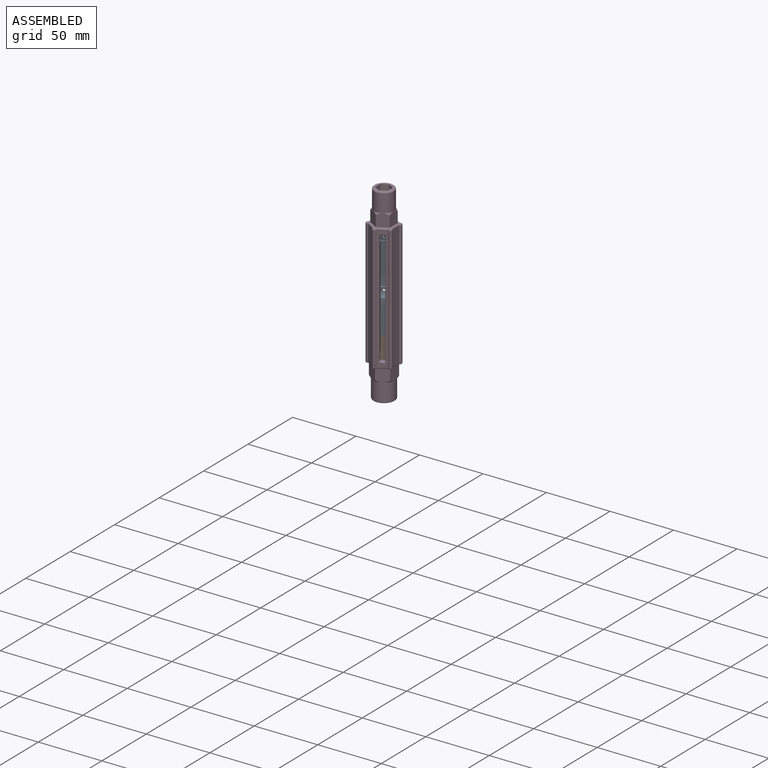
[diagram: assembled view]
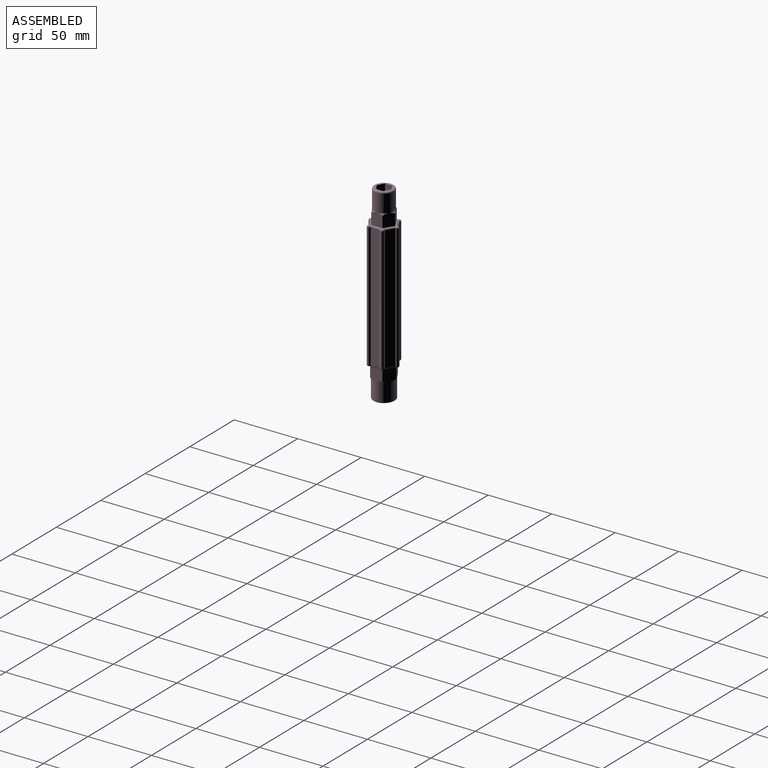
[diagram: assembled view, second angle]
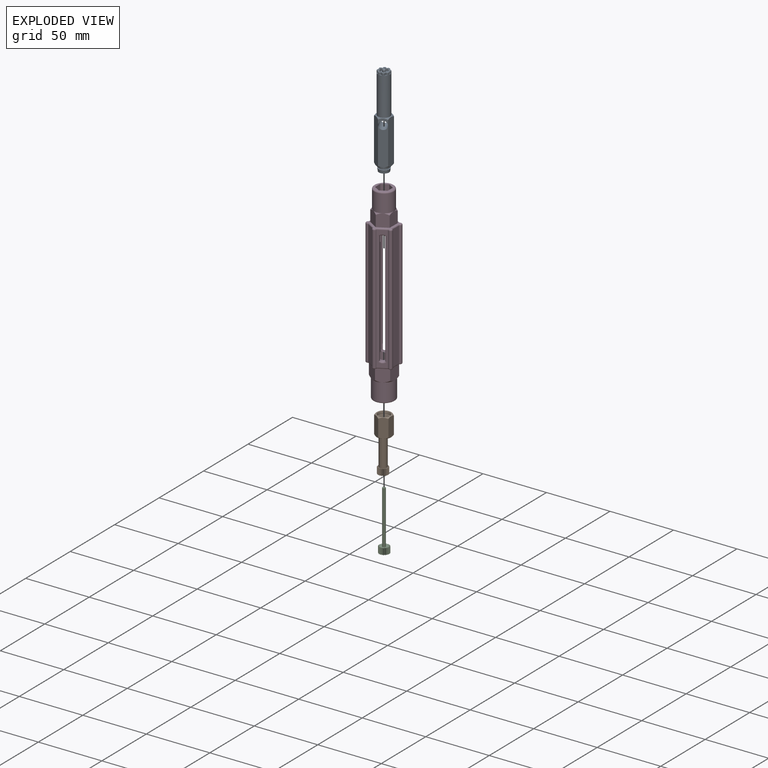
[diagram: exploded view]
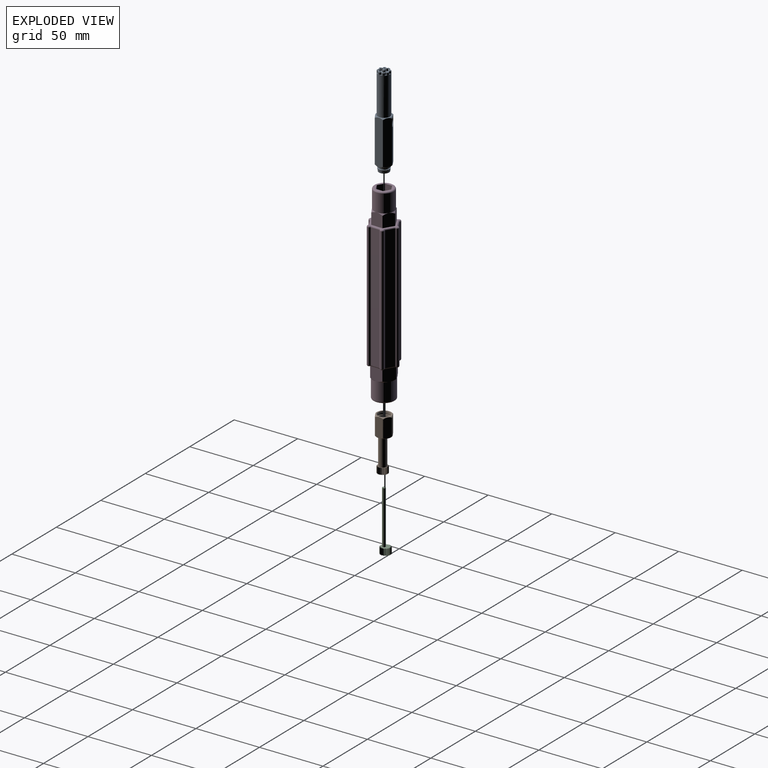
[diagram: exploded view, second angle]
ASSEMBLY  parts=4 mates=3
PART A: 108 faces, bbox 13x13x73 mm
  f0: plane 11.3x11.3mm, normal (0,0,1), area 29.4mm2, adj f9,f80,f81,f82,f83,f84,f85
  f1: plane 3.36x1.39mm, normal (0,0,1), area 1.3mm2, adj f9,f10,f24,f41
  f2: plane 3.36x1.39mm, normal (0,0,1), area 1.3mm2, adj f9,f10,f11,f12
  f3: plane 3.36x1.39mm, normal (0,0,1), area 1.3mm2, adj f9,f12,f13,f14
  f4: plane 3.36x1.39mm, normal (0,0,1), area 1.3mm2, adj f9,f14,f15,f16
  f5: plane 3.36x1.39mm, normal (0,0,1), area 1.3mm2, adj f9,f16,f17,f18
  f6: plane 3.36x1.39mm, normal (0,0,1), area 1.3mm2, adj f9,f18,f19,f20
  f7: plane 3.36x1.39mm, normal (0,0,1), area 1.3mm2, adj f9,f20,f21,f22
  f8: plane 3.36x1.39mm, normal (0,0,1), area 1.3mm2, adj f9,f22,f23,f24
  f9: cylinder r=4.75mm len=30mm, axis (0,0,-1), area 895.4mm2, adj f0,f1,f2,f3,f4,f5,f6,f7
  f10: cylinder r=1.25mm len=2.48mm, axis (0,0,-1), area 5.5mm2, adj f1,f2,f11,f41,f56
  f11: cylinder r=0.29mm len=1.53mm, axis (0,0,-1), area 0.9mm2, adj f2,f10,f12,f54
  f12: cylinder r=1.25mm len=2.01mm, axis (0,0,-1), area 5.5mm2, adj f2,f3,f11,f13,f52
  f13: cylinder r=0.29mm len=1.53mm, axis (0,0,-1), area 0.9mm2, adj f3,f12,f14,f50
  f14: cylinder r=1.25mm len=2.48mm, axis (0,0,-1), area 5.5mm2, adj f3,f4,f13,f15,f48
  f15: cylinder r=0.29mm len=1.53mm, axis (0,0,-1), area 0.9mm2, adj f4,f14,f16,f46
  f16: cylinder r=1.25mm len=2.01mm, axis (0,0,-1), area 5.5mm2, adj f4,f5,f15,f17,f44
  f17: cylinder r=0.29mm len=1.53mm, axis (0,0,-1), area 0.9mm2, adj f5,f16,f18,f45
  f18: cylinder r=1.25mm len=2.48mm, axis (0,0,-1), area 5.5mm2, adj f5,f6,f17,f19,f47
  f19: cylinder r=0.29mm len=1.53mm, axis (0,0,-1), area 0.9mm2, adj f6,f18,f20,f49
  f20: cylinder r=1.25mm len=2.01mm, axis (0,0,-1), area 5.5mm2, adj f6,f7,f19,f21,f51
  f21: cylinder r=0.29mm len=1.53mm, axis (0,0,-1), area 0.9mm2, adj f7,f20,f22,f53
  f22: cylinder r=1.25mm len=2.48mm, axis (0,0,-1), area 5.5mm2, adj f7,f8,f21,f23,f55
  f23: cylinder r=0.29mm len=1.53mm, axis (0,0,-1), area 0.9mm2, adj f8,f22,f24,f57
  f24: cylinder r=1.25mm len=2.01mm, axis (0,0,-1), area 5.5mm2, adj f1,f8,f23,f41,f59
  f25: cylinder r=1.25mm len=2mm, axis (0,0,-1), area 4mm2, adj f26,f40,f43,f73
  f26: cylinder r=0.29mm len=1.53mm, axis (0,0,-1), area 1.3mm2, adj f25,f27,f43,f71
  f27: cylinder r=1.25mm len=2mm, axis (0,0,-1), area 4mm2, adj f26,f28,f43,f69
  f28: cylinder r=0.29mm len=1.53mm, axis (0,0,-1), area 1.3mm2, adj f27,f29,f43,f67
  f29: cylinder r=1.25mm len=2mm, axis (0,0,-1), area 4mm2, adj f28,f30,f43,f65
  f30: cylinder r=0.29mm len=1.53mm, axis (0,0,-1), area 1.3mm2, adj f29,f31,f43,f63
  f31: cylinder r=1.25mm len=2mm, axis (0,0,-1), area 4mm2, adj f30,f32,f43,f61
  f32: cylinder r=0.29mm len=1.53mm, axis (0,0,-1), area 1.3mm2, adj f31,f33,f43,f60
  f33: cylinder r=1.25mm len=2mm, axis (0,0,-1), area 4mm2, adj f32,f34,f43,f62
  f34: cylinder r=0.29mm len=1.53mm, axis (0,0,-1), area 1.3mm2, adj f33,f35,f43,f64
  f35: cylinder r=1.25mm len=2mm, axis (0,0,-1), area 4mm2, adj f34,f36,f43,f66
  f36: cylinder r=0.29mm len=1.53mm, axis (0,0,-1), area 1.3mm2, adj f35,f37,f43,f68
  f37: cylinder r=1.25mm len=2mm, axis (0,0,-1), area 4mm2, adj f36,f38,f43,f70
  f38: cylinder r=0.29mm len=1.53mm, axis (0,0,-1), area 1.3mm2, adj f37,f39,f43,f72
  f39: cylinder r=1.25mm len=2mm, axis (0,0,-1), area 4mm2, adj f38,f40,f43,f74
  f40: cylinder r=0.29mm len=1.53mm, axis (0,0,-1), area 1.3mm2, adj f25,f39,f43,f75
  f41: cylinder r=0.29mm len=1.53mm, axis (0,0,-1), area 0.9mm2, adj f1,f10,f24,f58
  f42: plane 8.56x8.56mm, normal (0,0,1), area 0.5mm2, adj f44,f45,f46,f47,f48,f49,f50,f51
  f43: plane 7.59x7.59mm, normal (0,0,1), area 18.1mm2, adj f25,f26,f27,f28,f29,f30,f31,f32
  f44: torus R=0.78mm, axis (0,0,1), area 2.3mm2, adj f16,f42,f45,f46
  f45: torus R=0.76mm, axis (0,0,1), area 0.7mm2, adj f17,f42,f44,f47
  f46: torus R=0.76mm, axis (0,0,1), area 0.7mm2, adj f15,f42,f44,f48
  f47: torus R=0.78mm, axis (0,0,1), area 2.3mm2, adj f18,f42,f45,f49
  f48: torus R=0.78mm, axis (0,0,1), area 2.3mm2, adj f14,f42,f46,f50
  f49: torus R=0.76mm, axis (0,0,1), area 0.7mm2, adj f19,f42,f47,f51
  f50: torus R=0.76mm, axis (0,0,1), area 0.7mm2, adj f13,f42,f48,f52
  f51: torus R=0.78mm, axis (0,0,1), area 2.3mm2, adj f20,f42,f49,f53
  f52: torus R=0.78mm, axis (0,0,1), area 2.3mm2, adj f12,f42,f50,f54
  f53: torus R=0.76mm, axis (0,0,1), area 0.7mm2, adj f21,f42,f51,f55
  f54: torus R=0.76mm, axis (0,0,1), area 0.7mm2, adj f11,f42,f52,f56
  f55: torus R=0.78mm, axis (0,0,1), area 2.3mm2, adj f22,f42,f53,f57
  f56: torus R=0.78mm, axis (0,0,1), area 2.3mm2, adj f10,f42,f54,f58
  f57: torus R=0.76mm, axis (0,0,1), area 0.7mm2, adj f23,f42,f55,f59
  f58: torus R=0.76mm, axis (0,0,1), area 0.7mm2, adj f41,f42,f56,f59
  f59: torus R=0.78mm, axis (0,0,1), area 2.3mm2, adj f24,f42,f57,f58
  f60: torus R=0.76mm, axis (0,0,1), area 1mm2, adj f32,f42,f61,f62
  f61: torus R=0.78mm, axis (0,0,1), area 1.7mm2, adj f31,f42,f60,f63
  f62: torus R=0.78mm, axis (0,0,1), area 1.7mm2, adj f33,f42,f60,f64
  f63: torus R=0.76mm, axis (0,0,1), area 1mm2, adj f30,f42,f61,f65
  f64: torus R=0.76mm, axis (0,0,1), area 1mm2, adj f34,f42,f62,f66
  f65: torus R=0.78mm, axis (0,0,1), area 1.7mm2, adj f29,f42,f63,f67
  f66: torus R=0.78mm, axis (0,0,1), area 1.7mm2, adj f35,f42,f64,f68
  f67: torus R=0.76mm, axis (0,0,1), area 1mm2, adj f28,f42,f65,f69
  f68: torus R=0.76mm, axis (0,0,1), area 1mm2, adj f36,f42,f66,f70
  f69: torus R=0.78mm, axis (0,0,1), area 1.7mm2, adj f27,f42,f67,f71
  f70: torus R=0.78mm, axis (0,0,1), area 1.7mm2, adj f37,f42,f68,f72
  f71: torus R=0.76mm, axis (0,0,1), area 1mm2, adj f26,f42,f69,f73
  f72: torus R=0.76mm, axis (0,0,1), area 1mm2, adj f38,f42,f70,f74
  f73: torus R=0.78mm, axis (0,0,1), area 1.7mm2, adj f25,f42,f71,f75
  f74: torus R=0.78mm, axis (0,0,1), area 1.7mm2, adj f39,f42,f72,f75
  f75: torus R=0.76mm, axis (0,0,1), area 1mm2, adj f40,f42,f73,f74
  f76: cylinder r=2mm len=4mm, axis (0,0,1), area 25.1mm2, adj f43,f77
  f77: plane 4x4mm, normal (0,0,1), area 7.7mm2, adj f76,f78
  f78: cylinder r=1.25mm len=3.75mm, axis (0,0,-1), area 29.5mm2, adj f77,f79
  f79: sphere r=1.25mm, area 9.8mm2, adj f78
  f80: cone r=6.65mm half-angle=45deg, axis (0,0,-1), area 2.4mm2, adj f0,f87,f88
  f81: cone r=6.65mm half-angle=45deg, axis (0,0,-1), area 2.4mm2, adj f0,f87,f92
  f82: cone r=6.65mm half-angle=45deg, axis (0,0,-1), area 2.4mm2, adj f0,f88,f89
  f83: cone r=6.65mm half-angle=45deg, axis (0,0,-1), area 2.4mm2, adj f0,f89,f90
  f84: cone r=6.65mm half-angle=45deg, axis (0,0,-1), area 2.4mm2, adj f0,f90,f91
  f85: cone r=6.65mm half-angle=45deg, axis (0,0,-1), area 2.4mm2, adj f0,f91,f92
  f86: cylinder r=3.25mm len=11.3mm, axis (1,0,0), area 230.7mm2, adj f87,f90
  f87: plane 35.01x6.53mm, normal (1,0,0), area 191.2mm2, adj f80,f81,f86,f88,f92,f93,f94
  f88: plane 35.01x5.65mm, normal (0.5,-0.87,0), area 224.4mm2, adj f80,f82,f87,f89,f93,f95
  f89: plane 35.01x5.65mm, normal (-0.5,-0.87,0), area 224.4mm2, adj f82,f83,f88,f90,f95,f96
  f90: plane 35.01x6.53mm, normal (-1,0,0), area 191.2mm2, adj f83,f84,f86,f89,f91,f96,f97
  f91: plane 35.01x5.65mm, normal (-0.5,0.87,0), area 224.4mm2, adj f84,f85,f90,f92,f97,f98
  f92: plane 35.01x5.65mm, normal (0.5,0.87,0), area 224.4mm2, adj f81,f85,f87,f91,f94,f98
  f93: cone r=6.65mm half-angle=45deg, axis (0,0,1), area 2.4mm2, adj f87,f88,f107
  f94: cone r=6.65mm half-angle=45deg, axis (0,0,1), area 2.4mm2, adj f87,f92,f107
  f95: cone r=6.65mm half-angle=45deg, axis (0,0,1), area 2.4mm2, adj f88,f89,f107
  f96: cone r=6.65mm half-angle=45deg, axis (0,0,1), area 2.4mm2, adj f89,f90,f107
  f97: cone r=6.65mm half-angle=45deg, axis (0,0,1), area 2.4mm2, adj f90,f91,f107
  f98: cone r=6.65mm half-angle=45deg, axis (0,0,1), area 2.4mm2, adj f91,f92,f107
  f99: plane 2.49x2.49mm, normal (0,0,-1), area 4.9mm2, adj f100
  f100: cylinder r=1.25mm len=5mm, axis (0,0,-1), area 39.1mm2, adj f99,f101
  f101: plane 8x8mm, normal (0,0,-1), area 45.4mm2, adj f100,f102
  f102: cone r=4.75mm half-angle=8.5deg, axis (0,0,1), area 66.5mm2, adj f101,f103
  f103: plane 8.75x8.75mm, normal (0,0,1), area 21.6mm2, adj f102,f104
  f104: cylinder r=3.5mm len=7mm, axis (0,0,-1), area 22mm2, adj f103,f105
  f105: plane 9.05x9.05mm, normal (0,0,-1), area 25.8mm2, adj f104,f106
  f106: cone r=4.75mm half-angle=8.5deg, axis (0,0,1), area 44.2mm2, adj f105,f107
  f107: plane 11.3x11.3mm, normal (0,0,-1), area 29.4mm2, adj f93,f94,f95,f96,f97,f98,f106
PART B: 95 faces, bbox 12.7x12.7x42 mm
  f0: cone r=4.75mm half-angle=8.5deg, axis (0,0,1), area 66.5mm2, adj f90,f92
  f1: cylinder r=1.38mm len=37mm, axis (0,0,1), area 319.7mm2, adj f63,f90
  f2: plane 11.3x11.3mm, normal (0,0,-1), area 72mm2, adj f64,f65,f66,f67,f68,f69,f70
  f3: plane 1.13x0.89mm, normal (0,0,1), area 0.5mm2, adj f53,f54,f64
  f4: plane 1.11x0.99mm, normal (0,0,1), area 0.5mm2, adj f55,f56,f64
  f5: plane 1.11x0.99mm, normal (0,0,1), area 0.5mm2, adj f57,f58,f64
  f6: plane 1.13x0.89mm, normal (0,0,1), area 0.5mm2, adj f59,f60,f64
  f7: plane 1.04x0.94mm, normal (0,0,1), area 0.5mm2, adj f22,f61,f64
  f8: plane 1.13x0.89mm, normal (0,0,1), area 0.5mm2, adj f23,f24,f64
  f9: plane 1.11x0.99mm, normal (0,0,1), area 0.5mm2, adj f25,f26,f64
  f10: plane 1.11x0.99mm, normal (0,0,1), area 0.5mm2, adj f27,f28,f64
  f11: plane 1.13x0.89mm, normal (0,0,1), area 0.5mm2, adj f29,f30,f64
  f12: plane 1.04x0.94mm, normal (0,0,1), area 0.5mm2, adj f31,f32,f64
  f13: plane 1.13x0.89mm, normal (0,0,1), area 0.5mm2, adj f33,f34,f64
  f14: plane 1.11x0.99mm, normal (0,0,1), area 0.5mm2, adj f35,f36,f64
  f15: plane 1.11x0.99mm, normal (0,0,1), area 0.5mm2, adj f37,f38,f64
  f16: plane 1.13x0.89mm, normal (0,0,1), area 0.5mm2, adj f39,f40,f64
  f17: plane 1.04x0.94mm, normal (0,0,1), area 0.5mm2, adj f41,f42,f64
  f18: plane 1.13x0.89mm, normal (0,0,1), area 0.5mm2, adj f43,f44,f64
  f19: plane 1.11x0.99mm, normal (0,0,1), area 0.5mm2, adj f45,f46,f64
  f20: plane 1.11x0.99mm, normal (0,0,1), area 0.5mm2, adj f47,f48,f64
  f21: plane 1.13x0.89mm, normal (0,0,1), area 0.5mm2, adj f49,f50,f64
  f22: plane 5x1.04mm, normal (-0.91,0.41,0), area 5.7mm2, adj f7,f23,f61,f63
  f23: plane 5x0.84mm, normal (0.74,0.67,0), area 5.7mm2, adj f8,f22,f24,f63
  f24: plane 5x1.13mm, normal (-0.99,0.11,0), area 5.7mm2, adj f8,f23,f25,f63
  f25: plane 5x0.99mm, normal (0.49,0.87,0), area 5.7mm2, adj f9,f24,f26,f63
  f26: plane 5x1.11mm, normal (-0.98,-0.2,0), area 5.7mm2, adj f9,f25,f27,f63
  f27: plane 5x1.11mm, normal (0.2,0.98,0), area 5.7mm2, adj f10,f26,f28,f63
  f28: plane 5x0.99mm, normal (-0.87,-0.49,0), area 5.7mm2, adj f10,f27,f29,f63
  f29: plane 5x1.13mm, normal (-0.11,0.99,0), area 5.7mm2, adj f11,f28,f30,f63
  f30: plane 5x0.84mm, normal (-0.67,-0.74,0), area 5.7mm2, adj f11,f29,f31,f63
  f31: plane 5x1.04mm, normal (-0.41,0.91,0), area 5.7mm2, adj f12,f30,f32,f63
  f32: plane 5x1.04mm, normal (-0.41,-0.91,0), area 5.7mm2, adj f12,f31,f33,f63
  f33: plane 5x0.84mm, normal (-0.67,0.74,0), area 5.7mm2, adj f13,f32,f34,f63
  f34: plane 5x1.13mm, normal (-0.11,-0.99,0), area 5.7mm2, adj f13,f33,f35,f63
  f35: plane 5x0.99mm, normal (-0.87,0.49,0), area 5.7mm2, adj f14,f34,f36,f63
  f36: plane 5x1.11mm, normal (0.2,-0.98,0), area 5.7mm2, adj f14,f35,f37,f63
  f37: plane 5x1.11mm, normal (-0.98,0.2,0), area 5.7mm2, adj f15,f36,f38,f63
  f38: plane 5x0.99mm, normal (0.49,-0.87,0), area 5.7mm2, adj f15,f37,f39,f63
  f39: plane 5x1.13mm, normal (-0.99,-0.11,0), area 5.7mm2, adj f16,f38,f40,f63
  f40: plane 5x0.84mm, normal (0.74,-0.67,0), area 5.7mm2, adj f16,f39,f41,f63
  f41: plane 5x1.04mm, normal (-0.91,-0.41,0), area 5.7mm2, adj f17,f40,f42,f63
  f42: plane 5x1.04mm, normal (0.91,-0.41,0), area 5.7mm2, adj f17,f41,f43,f63
  f43: plane 5x0.84mm, normal (-0.74,-0.67,0), area 5.7mm2, adj f18,f42,f44,f63
  f44: plane 5x1.13mm, normal (0.99,-0.11,0), area 5.7mm2, adj f18,f43,f45,f63
  f45: plane 5x0.99mm, normal (-0.49,-0.87,0), area 5.7mm2, adj f19,f44,f46,f63
  f46: plane 5x1.11mm, normal (0.98,0.2,0), area 5.7mm2, adj f19,f45,f47,f63
  f47: plane 5x1.11mm, normal (-0.2,-0.98,0), area 5.7mm2, adj f20,f46,f48,f63
  f48: plane 5x0.99mm, normal (0.87,0.49,0), area 5.7mm2, adj f20,f47,f49,f63
  f49: plane 5x1.13mm, normal (0.11,-0.99,0), area 5.7mm2, adj f21,f48,f50,f63
  f50: plane 5x0.84mm, normal (0.67,0.74,0), area 5.7mm2, adj f21,f49,f51,f63
  f51: plane 5x1.04mm, normal (0.41,-0.91,0), area 5.7mm2, adj f50,f52,f62,f63
  f52: plane 5x1.04mm, normal (0.41,0.91,0), area 5.7mm2, adj f51,f53,f62,f63
  f53: plane 5x0.84mm, normal (0.67,-0.74,0), area 5.7mm2, adj f3,f52,f54,f63
  f54: plane 5x1.13mm, normal (0.11,0.99,0), area 5.7mm2, adj f3,f53,f55,f63
  f55: plane 5x0.99mm, normal (0.87,-0.49,0), area 5.7mm2, adj f4,f54,f56,f63
  f56: plane 5x1.11mm, normal (-0.2,0.98,0), area 5.7mm2, adj f4,f55,f57,f63
  f57: plane 5x1.11mm, normal (0.98,-0.2,0), area 5.7mm2, adj f5,f56,f58,f63
  f58: plane 5x0.99mm, normal (-0.49,0.87,0), area 5.7mm2, adj f5,f57,f59,f63
  f59: plane 5x1.13mm, normal (0.99,0.11,0), area 5.7mm2, adj f6,f58,f60,f63
  f60: plane 5x0.84mm, normal (-0.74,0.67,0), area 5.7mm2, adj f6,f59,f61,f63
  f61: plane 5x1.04mm, normal (0.91,0.41,0), area 5.7mm2, adj f7,f22,f60,f63
  f62: plane 1.04x0.94mm, normal (0,0,1), area 0.5mm2, adj f51,f52,f64
  f63: plane 8x8mm, normal (0,0,-1), area 31.6mm2, adj f1,f22,f23,f24,f25,f26,f27,f28
  f64: cylinder r=3mm len=22mm, axis (0,0,-1), area 414.7mm2, adj f2,f3,f4,f5,f6,f7,f8,f9
  f65: cone r=5.65mm half-angle=45deg, axis (0,0,1), area 2.4mm2, adj f2,f71,f76,f89
  f66: cone r=5.65mm half-angle=45deg, axis (0,0,1), area 2.4mm2, adj f2,f71,f72,f88
  f67: cone r=5.65mm half-angle=45deg, axis (0,0,1), area 2.4mm2, adj f2,f72,f73,f87
  f68: cone r=5.65mm half-angle=45deg, axis (0,0,1), area 2.4mm2, adj f2,f73,f74,f86
  f69: cone r=5.65mm half-angle=45deg, axis (0,0,1), area 2.4mm2, adj f2,f74,f75,f85
  f70: cone r=5.65mm half-angle=45deg, axis (0,0,1), area 2.4mm2, adj f2,f75,f76,f84
  f71: plane 15.01x5.38mm, normal (1,0,0), area 78.3mm2, adj f65,f66,f77,f78,f88,f89
  f72: plane 15.01x4.66mm, normal (0.5,-0.87,0), area 78.3mm2, adj f66,f67,f78,f79,f87,f88
  f73: plane 15.01x4.66mm, normal (-0.5,-0.87,0), area 78.3mm2, adj f67,f68,f79,f80,f86,f87
  f74: plane 15.01x5.38mm, normal (-1,0,0), area 78.3mm2, adj f68,f69,f80,f81,f85,f86
  f75: plane 15.01x4.66mm, normal (-0.5,0.87,0), area 78.3mm2, adj f69,f70,f81,f82,f84,f85
  f76: plane 15.01x4.66mm, normal (0.5,0.87,0), area 78.3mm2, adj f65,f70,f77,f82,f84,f89
  f77: cone r=5.65mm half-angle=45deg, axis (0,0,-1), area 2.4mm2, adj f71,f76,f83,f89
  f78: cone r=5.65mm half-angle=45deg, axis (0,0,-1), area 2.4mm2, adj f71,f72,f83,f88
  f79: cone r=5.65mm half-angle=45deg, axis (0,0,-1), area 2.4mm2, adj f72,f73,f83,f87
  f80: cone r=5.65mm half-angle=45deg, axis (0,0,-1), area 2.4mm2, adj f73,f74,f83,f86
  f81: cone r=5.65mm half-angle=45deg, axis (0,0,-1), area 2.4mm2, adj f74,f75,f83,f85
  f82: cone r=5.65mm half-angle=45deg, axis (0,0,-1), area 2.4mm2, adj f75,f76,f83,f84
  f83: plane 11.3x11.3mm, normal (0,0,1), area 29.4mm2, adj f77,f78,f79,f80,f81,f82,f91
  f84: cylinder r=1mm len=13.79mm, axis (0,0,-1), area 14.4mm2, adj f70,f75,f76,f82
  f85: cylinder r=1mm len=13.79mm, axis (0,0,-1), area 14.4mm2, adj f69,f74,f75,f81
  f86: cylinder r=1mm len=13.79mm, axis (0,0,-1), area 14.4mm2, adj f68,f73,f74,f80
  f87: cylinder r=1mm len=13.79mm, axis (0,0,-1), area 14.4mm2, adj f67,f72,f73,f79
  f88: cylinder r=1mm len=13.79mm, axis (0,0,-1), area 14.4mm2, adj f66,f71,f72,f78
  f89: cylinder r=1mm len=13.79mm, axis (0,0,-1), area 14.4mm2, adj f65,f71,f76,f77
  f90: plane 8x8mm, normal (0,0,1), area 44.3mm2, adj f0,f1
  f91: cone r=4.75mm half-angle=8.5deg, axis (0,0,1), area 44.2mm2, adj f83,f93
  f92: plane 10x10mm, normal (0,0,1), area 18.4mm2, adj f0,f94
  f93: plane 10x10mm, normal (0,0,-1), area 14.2mm2, adj f91,f94
  f94: cylinder r=5mm len=10mm, axis (0,0,1), area 31.4mm2, adj f92,f93
PART C: 44 faces, bbox 8x8x47 mm
  f0: plane 5x1.04mm, normal (-0.91,0.41,0), area 5.7mm2, adj f1,f39,f40,f41
  f1: plane 5x0.84mm, normal (0.74,0.67,0), area 5.7mm2, adj f0,f2,f40,f41
  f2: plane 5x1.13mm, normal (-0.99,0.11,0), area 5.7mm2, adj f1,f3,f40,f41
  f3: plane 5x0.99mm, normal (0.49,0.87,0), area 5.7mm2, adj f2,f4,f40,f41
  f4: plane 5x1.11mm, normal (-0.98,-0.2,0), area 5.7mm2, adj f3,f5,f40,f41
  f5: plane 5x1.11mm, normal (0.2,0.98,0), area 5.7mm2, adj f4,f6,f40,f41
  f6: plane 5x0.99mm, normal (-0.87,-0.49,0), area 5.7mm2, adj f5,f7,f40,f41
  f7: plane 5x1.13mm, normal (-0.11,0.99,0), area 5.7mm2, adj f6,f8,f40,f41
  f8: plane 5x0.84mm, normal (-0.67,-0.74,0), area 5.7mm2, adj f7,f9,f40,f41
  f9: plane 5x1.04mm, normal (-0.41,0.91,0), area 5.7mm2, adj f8,f10,f40,f41
  f10: plane 5x1.04mm, normal (-0.41,-0.91,0), area 5.7mm2, adj f9,f11,f40,f41
  f11: plane 5x0.84mm, normal (-0.67,0.74,0), area 5.7mm2, adj f10,f12,f40,f41
  f12: plane 5x1.13mm, normal (-0.11,-0.99,0), area 5.7mm2, adj f11,f13,f40,f41
  f13: plane 5x0.99mm, normal (-0.87,0.49,0), area 5.7mm2, adj f12,f14,f40,f41
  f14: plane 5x1.11mm, normal (0.2,-0.98,0), area 5.7mm2, adj f13,f15,f40,f41
  f15: plane 5x1.11mm, normal (-0.98,0.2,0), area 5.7mm2, adj f14,f16,f40,f41
  f16: plane 5x0.99mm, normal (0.49,-0.87,0), area 5.7mm2, adj f15,f17,f40,f41
  f17: plane 5x1.13mm, normal (-0.99,-0.11,0), area 5.7mm2, adj f16,f18,f40,f41
  f18: plane 5x0.84mm, normal (0.74,-0.67,0), area 5.7mm2, adj f17,f19,f40,f41
  f19: plane 5x1.04mm, normal (-0.91,-0.41,0), area 5.7mm2, adj f18,f20,f40,f41
  f20: plane 5x1.04mm, normal (0.91,-0.41,0), area 5.7mm2, adj f19,f21,f40,f41
  f21: plane 5x0.84mm, normal (-0.74,-0.67,0), area 5.7mm2, adj f20,f22,f40,f41
  f22: plane 5x1.13mm, normal (0.99,-0.11,0), area 5.7mm2, adj f21,f23,f40,f41
  f23: plane 5x0.99mm, normal (-0.49,-0.87,0), area 5.7mm2, adj f22,f24,f40,f41
  f24: plane 5x1.11mm, normal (0.98,0.2,0), area 5.7mm2, adj f23,f25,f40,f41
  f25: plane 5x1.11mm, normal (-0.2,-0.98,0), area 5.7mm2, adj f24,f26,f40,f41
  f26: plane 5x0.99mm, normal (0.87,0.49,0), area 5.7mm2, adj f25,f27,f40,f41
  f27: plane 5x1.13mm, normal (0.11,-0.99,0), area 5.7mm2, adj f26,f28,f40,f41
  f28: plane 5x0.84mm, normal (0.67,0.74,0), area 5.7mm2, adj f27,f29,f40,f41
  f29: plane 5x1.04mm, normal (0.41,-0.91,0), area 5.7mm2, adj f28,f30,f40,f41
  f30: plane 5x1.04mm, normal (0.41,0.91,0), area 5.7mm2, adj f29,f31,f40,f41
  f31: plane 5x0.84mm, normal (0.67,-0.74,0), area 5.7mm2, adj f30,f32,f40,f41
  f32: plane 5x1.13mm, normal (0.11,0.99,0), area 5.7mm2, adj f31,f33,f40,f41
  f33: plane 5x0.99mm, normal (0.87,-0.49,0), area 5.7mm2, adj f32,f34,f40,f41
  f34: plane 5x1.11mm, normal (-0.2,0.98,0), area 5.7mm2, adj f33,f35,f40,f41
  f35: plane 5x1.11mm, normal (0.98,-0.2,0), area 5.7mm2, adj f34,f36,f40,f41
  f36: plane 5x0.99mm, normal (-0.49,0.87,0), area 5.7mm2, adj f35,f37,f40,f41
  f37: plane 5x1.13mm, normal (0.99,0.11,0), area 5.7mm2, adj f36,f38,f40,f41
  f38: plane 5x0.84mm, normal (-0.74,0.67,0), area 5.7mm2, adj f37,f39,f40,f41
  f39: plane 5x1.04mm, normal (0.91,0.41,0), area 5.7mm2, adj f0,f38,f40,f41
  f40: plane 8x8mm, normal (0,0,1), area 32.6mm2, adj f0,f1,f2,f3,f4,f5,f6,f7
  f41: plane 8x8mm, normal (0,0,-1), area 37.5mm2, adj f0,f1,f2,f3,f4,f5,f6,f7
  f42: cylinder r=1.25mm len=42mm, axis (0,0,-1), area 329.9mm2, adj f40,f43
  f43: plane 2.5x2.5mm, normal (0,0,1), area 4.9mm2, adj f42
PART D: 141 faces, bbox 21.2x24x150 mm
  f0: plane 98x6.4mm, normal (-1,0,0), area 125.3mm2, adj f67,f68,f78,f79,f133,f134,f135,f136
  f1: plane 98x6.4mm, normal (1,0,0), area 125.3mm2, adj f31,f32,f40,f41,f137,f138,f139,f140
  f2: plane 6.5x5.99mm, normal (1,0,0), area 12.5mm2, adj f121,f122,f125,f131
  f3: plane 6.5x5.99mm, normal (-1,0,0), area 12.5mm2, adj f119,f120,f126,f130
  f4: plane 122x6.64mm, normal (1,0,0), area 471.3mm2, adj f91,f93,f94,f96,f121,f122,f125,f127
  f5: plane 122x6.64mm, normal (-1,0,0), area 471.3mm2, adj f91,f92,f95,f96,f119,f120,f123,f126
  f6: plane 13.5x13.5mm, normal (0,0,1), area 56.5mm2, adj f106,f107,f108,f109,f110,f111,f112
  f7: plane 10.01x8.5mm, normal (0.5,0.87,0), area 93.7mm2, adj f8,f12,f13,f85,f90
  f8: plane 10.01x8.5mm, normal (-0.5,0.87,0), area 93.7mm2, adj f7,f9,f13,f89,f90
  f9: plane 10.01x9.83mm, normal (-1,0,0), area 93.7mm2, adj f8,f10,f13,f88,f89
  f10: plane 10.01x8.5mm, normal (-0.5,-0.87,0), area 93.7mm2, adj f9,f11,f13,f87,f88
  f11: plane 10.01x8.5mm, normal (0.5,-0.87,0), area 93.7mm2, adj f10,f12,f13,f86,f87
  f12: plane 10.01x9.83mm, normal (1,0,0), area 93.7mm2, adj f7,f11,f13,f85,f86
  f13: plane 22x19.19mm, normal (0,0,-1), area 11.2mm2, adj f7,f8,f9,f10,f11,f12,f25,f26
  f14: plane 22x19.19mm, normal (0,0,1), area 53.4mm2, adj f30,f34,f35,f39,f40,f44,f45,f49
  f15: cylinder r=1.5mm len=98mm, axis (0,0,-1), area 436.3mm2, adj f73,f78,f81,f84
  f16: plane 98x5.55mm, normal (-0.5,-0.87,0), area 627.5mm2, adj f71,f72,f80,f81
  f17: cylinder r=1.5mm len=98mm, axis (0,0,-1), area 436.3mm2, adj f61,f62,f70,f71
  f18: plane 98x5.55mm, normal (0.5,-0.87,0), area 627.5mm2, adj f51,f52,f60,f61
  f19: cylinder r=1.5mm len=98mm, axis (0,0,-1), area 436.3mm2, adj f41,f42,f50,f51
  f20: cylinder r=1.5mm len=98mm, axis (0,0,-1), area 436.3mm2, adj f25,f29,f30,f31
  f21: plane 98x5.55mm, normal (0.5,0.87,0), area 627.5mm2, adj f28,f29,f38,f39
  f22: cylinder r=1.5mm len=98mm, axis (0,0,-1), area 436.3mm2, adj f37,f38,f48,f49
  f23: plane 98x5.55mm, normal (-0.5,0.87,0), area 627.5mm2, adj f47,f48,f58,f59
  f24: cylinder r=1.5mm len=98mm, axis (0,0,-1), area 436.3mm2, adj f57,f58,f68,f69
  f25: torus R=0.5mm, axis (0,0,1), area 5.3mm2, adj f13,f20,f26,f27
  f26: torus R=2mm, axis (0,0,1), area 2.1mm2, adj f13,f25,f28,f29
  f27: torus R=2mm, axis (0,0,1), area 2.1mm2, adj f13,f25,f31,f32
  f28: cylinder r=1mm len=6.05mm, axis (-0.87,0.5,0), area 10.1mm2, adj f13,f21,f26,f33
  f29: cylinder r=1mm len=98mm, axis (0,0,-1), area 94.1mm2, adj f20,f21,f26,f34
  f30: torus R=0.5mm, axis (0,0,1), area 5.3mm2, adj f14,f20,f34,f35
  f31: cylinder r=1mm len=98mm, axis (0,0,-1), area 94.1mm2, adj f1,f20,f27,f35
  f32: cylinder r=1mm len=6.4mm, axis (0,1,0), area 10.1mm2, adj f1,f13,f27,f36
  f33: torus R=2mm, axis (0,0,1), area 2.1mm2, adj f13,f28,f37,f38
  f34: torus R=2mm, axis (0,0,1), area 2.1mm2, adj f14,f29,f30,f39
  f35: torus R=2mm, axis (0,0,1), area 2.1mm2, adj f14,f30,f31,f40
  f36: torus R=2mm, axis (0,0,1), area 2.1mm2, adj f13,f32,f41,f42
  f37: torus R=0.5mm, axis (0,0,1), area 5.3mm2, adj f13,f22,f33,f43
  f38: cylinder r=1mm len=98mm, axis (0,0,-1), area 94.1mm2, adj f21,f22,f33,f44
  f39: cylinder r=1mm len=6.05mm, axis (0.87,-0.5,0), area 10.1mm2, adj f14,f21,f34,f44
  f40: cylinder r=1mm len=6.4mm, axis (0,-1,0), area 10.1mm2, adj f1,f14,f35,f45
  f41: cylinder r=1mm len=98mm, axis (0,0,-1), area 94.1mm2, adj f1,f19,f36,f45
  f42: torus R=0.5mm, axis (0,0,1), area 5.3mm2, adj f13,f19,f36,f46
  f43: torus R=2mm, axis (0,0,1), area 2.1mm2, adj f13,f37,f47,f48
  f44: torus R=2mm, axis (0,0,1), area 2.1mm2, adj f14,f38,f39,f49
  f45: torus R=2mm, axis (0,0,1), area 2.1mm2, adj f14,f40,f41,f50
  f46: torus R=2mm, axis (0,0,1), area 2.1mm2, adj f13,f42,f51,f52
  f47: cylinder r=1mm len=6.05mm, axis (-0.87,-0.5,0), area 10.1mm2, adj f13,f23,f43,f53
  f48: cylinder r=1mm len=98mm, axis (0,0,-1), area 94.1mm2, adj f22,f23,f43,f54
  f49: torus R=0.5mm, axis (0,0,1), area 5.3mm2, adj f14,f22,f44,f54
  f50: torus R=0.5mm, axis (0,0,1), area 5.3mm2, adj f14,f19,f45,f55
  f51: cylinder r=1mm len=98mm, axis (0,0,-1), area 94.1mm2, adj f18,f19,f46,f55
  f52: cylinder r=1mm len=6.05mm, axis (0.87,0.5,0), area 10.1mm2, adj f13,f18,f46,f56
  f53: torus R=2mm, axis (0,0,1), area 2.1mm2, adj f13,f47,f57,f58
  f54: torus R=2mm, axis (0,0,1), area 2.1mm2, adj f14,f48,f49,f59
  f55: torus R=2mm, axis (0,0,1), area 2.1mm2, adj f14,f50,f51,f60
  f56: torus R=2mm, axis (0,0,1), area 2.1mm2, adj f13,f52,f61,f62
  f57: torus R=0.5mm, axis (0,0,1), area 5.3mm2, adj f13,f24,f53,f63
  f58: cylinder r=1mm len=98mm, axis (0,0,-1), area 94.1mm2, adj f23,f24,f53,f64
  f59: cylinder r=1mm len=6.05mm, axis (0.87,0.5,0), area 10.1mm2, adj f14,f23,f54,f64
  f60: cylinder r=1mm len=6.05mm, axis (-0.87,-0.5,0), area 10.1mm2, adj f14,f18,f55,f65
  f61: cylinder r=1mm len=98mm, axis (0,0,-1), area 94.1mm2, adj f17,f18,f56,f65
  f62: torus R=0.5mm, axis (0,0,1), area 5.3mm2, adj f13,f17,f56,f66
  f63: torus R=2mm, axis (0,0,1), area 2.1mm2, adj f13,f57,f67,f68
  f64: torus R=2mm, axis (0,0,1), area 2.1mm2, adj f14,f58,f59,f69
  f65: torus R=2mm, axis (0,0,1), area 2.1mm2, adj f14,f60,f61,f70
  f66: torus R=2mm, axis (0,0,1), area 2.1mm2, adj f13,f62,f71,f72
  f67: cylinder r=1mm len=6.4mm, axis (0,-1,0), area 10.1mm2, adj f0,f13,f63,f74
  f68: cylinder r=1mm len=98mm, axis (0,0,-1), area 94.1mm2, adj f0,f24,f63,f75
  f69: torus R=0.5mm, axis (0,0,1), area 5.3mm2, adj f14,f24,f64,f75
  f70: torus R=0.5mm, axis (0,0,1), area 5.3mm2, adj f14,f17,f65,f76
  f71: cylinder r=1mm len=98mm, axis (0,0,-1), area 94.1mm2, adj f16,f17,f66,f76
  f72: cylinder r=1mm len=6.05mm, axis (0.87,-0.5,0), area 10.1mm2, adj f13,f16,f66,f77
  f73: torus R=0.5mm, axis (0,0,1), area 5.3mm2, adj f13,f15,f74,f77
  f74: torus R=2mm, axis (0,0,1), area 2.1mm2, adj f13,f67,f73,f78
  f75: torus R=2mm, axis (0,0,1), area 2.1mm2, adj f14,f68,f69,f79
  f76: torus R=2mm, axis (0,0,1), area 2.1mm2, adj f14,f70,f71,f80
  f77: torus R=2mm, axis (0,0,1), area 2.1mm2, adj f13,f72,f73,f81
  f78: cylinder r=1mm len=98mm, axis (0,0,-1), area 94.1mm2, adj f0,f15,f74,f82
  f79: cylinder r=1mm len=6.4mm, axis (0,1,0), area 10.1mm2, adj f0,f14,f75,f82
  f80: cylinder r=1mm len=6.05mm, axis (-0.87,0.5,0), area 10.1mm2, adj f14,f16,f76,f83
  f81: cylinder r=1mm len=98mm, axis (0,0,-1), area 94.1mm2, adj f15,f16,f77,f83
  f82: torus R=2mm, axis (0,0,1), area 2.1mm2, adj f14,f78,f79,f84
  f83: torus R=2mm, axis (0,0,1), area 2.1mm2, adj f14,f80,f81,f84
  f84: torus R=0.5mm, axis (0,0,1), area 5.3mm2, adj f14,f15,f82,f83
  f85: cone r=10.5mm half-angle=45deg, axis (0,0,1), area 5.5mm2, adj f7,f12,f97
  f86: cone r=10.5mm half-angle=45deg, axis (0,0,1), area 5.5mm2, adj f11,f12,f97
  f87: cone r=10.5mm half-angle=45deg, axis (0,0,1), area 5.5mm2, adj f10,f11,f97
  f88: cone r=10.5mm half-angle=45deg, axis (0,0,1), area 5.5mm2, adj f9,f10,f97
  f89: cone r=10.5mm half-angle=45deg, axis (0,0,1), area 5.5mm2, adj f8,f9,f97
  f90: cone r=10.5mm half-angle=45deg, axis (0,0,1), area 5.5mm2, adj f7,f8,f97
  f91: plane 13.28x11.5mm, normal (0,0,-1), area 27.9mm2, adj f4,f5,f92,f93,f94,f95,f106,f107
  f92: plane 122x5.75mm, normal (-0.5,0.87,0), area 810mm2, adj f5,f91,f93,f96
  f93: plane 122x5.75mm, normal (0.5,0.87,0), area 810mm2, adj f4,f91,f92,f96
  f94: plane 122x5.75mm, normal (0.5,-0.87,0), area 810mm2, adj f4,f91,f95,f96
  f95: plane 122x5.75mm, normal (-0.5,-0.87,0), area 810mm2, adj f5,f91,f94,f96
  f96: plane 15x15mm, normal (0,0,-1), area 62.2mm2, adj f4,f5,f92,f93,f94,f95,f98
  f97: cylinder r=8.5mm len=17mm, axis (0,0,-1), area 747.7mm2, adj f85,f86,f87,f88,f89,f90,f98
  f98: torus R=7.5mm, axis (0,0,1), area 80.3mm2, adj f96,f97
  f99: plane 10.01x8.96mm, normal (1,0,0), area 85.8mm2, adj f14,f100,f104,f113,f118
  f100: plane 10.01x7.75mm, normal (0.5,0.87,0), area 85.8mm2, adj f14,f99,f101,f117,f118
  f101: plane 10.01x7.75mm, normal (-0.5,0.87,0), area 85.8mm2, adj f14,f100,f102,f116,f117
  f102: plane 10.01x8.96mm, normal (-1,0,0), area 85.8mm2, adj f14,f101,f103,f115,f116
  f103: plane 10.01x7.75mm, normal (-0.5,-0.87,0), area 85.8mm2, adj f14,f102,f104,f114,f115
  f104: plane 10.01x7.75mm, normal (0.5,-0.87,0), area 85.8mm2, adj f14,f99,f103,f113,f114
  f105: cylinder r=7.75mm len=15.5mm, axis (0,0,-1), area 681.7mm2, adj f112,f113,f114,f115,f116,f117,f118
  f106: plane 28x5.77mm, normal (-1,0,0), area 161.7mm2, adj f6,f91,f107,f111
  f107: plane 28x5mm, normal (-0.5,-0.87,0), area 161.7mm2, adj f6,f91,f106,f108
  f108: plane 28x5mm, normal (0.5,-0.87,0), area 161.7mm2, adj f6,f91,f107,f109
  f109: plane 28x5.77mm, normal (1,0,0), area 161.7mm2, adj f6,f91,f108,f110
  f110: plane 28x5mm, normal (0.5,0.87,0), area 161.7mm2, adj f6,f91,f109,f111
  f111: plane 28x5mm, normal (-0.5,0.87,0), area 161.7mm2, adj f6,f91,f106,f110
  f112: torus R=6.75mm, axis (0,0,1), area 72.9mm2, adj f6,f105
  f113: cone r=9.75mm half-angle=45deg, axis (0,0,-1), area 4.6mm2, adj f99,f104,f105
  f114: cone r=9.75mm half-angle=45deg, axis (0,0,-1), area 4.6mm2, adj f103,f104,f105
  f115: cone r=9.75mm half-angle=45deg, axis (0,0,-1), area 4.6mm2, adj f102,f103,f105
  f116: cone r=9.75mm half-angle=45deg, axis (0,0,-1), area 4.6mm2, adj f101,f102,f105
  f117: cone r=9.75mm half-angle=45deg, axis (0,0,-1), area 4.6mm2, adj f100,f101,f105
  f118: cone r=9.75mm half-angle=45deg, axis (0,0,-1), area 4.6mm2, adj f99,f100,f105
  f119: plane 88.87x2.78mm, normal (0,-1,0), area 226mm2, adj f3,f5,f123,f124,f126,f130,f132,f139
  f120: plane 88.87x2.78mm, normal (0,1,0), area 226mm2, adj f3,f5,f123,f124,f126,f130,f132,f138
  f121: plane 88.87x2.78mm, normal (0,1,0), area 226mm2, adj f2,f4,f125,f127,f128,f129,f131,f134
  f122: plane 88.87x2.78mm, normal (0,-1,0), area 226mm2, adj f2,f4,f125,f127,f128,f129,f131,f135
  f123: cylinder r=3.25mm len=6.5mm, axis (-1,0,0), area 33.4mm2, adj f5,f119,f120,f124
  f124: plane 6.5x5.99mm, normal (-1,0,0), area 12.5mm2, adj f119,f120,f123,f132
  f125: cylinder r=3.25mm len=6.5mm, axis (1,0,0), area 33.4mm2, adj f2,f4,f121,f122
  f126: cylinder r=3.25mm len=6.5mm, axis (-1,0,0), area 33.4mm2, adj f3,f5,f119,f120
  f127: cylinder r=3.25mm len=6.5mm, axis (1,0,0), area 33.4mm2, adj f4,f121,f122,f128
  f128: plane 6.5x5.99mm, normal (1,0,0), area 12.5mm2, adj f121,f122,f127,f129
  f129: cylinder r=3mm len=3.5mm, axis (1,0,0), area 2.9mm2, adj f121,f122,f128,f133
  f130: cylinder r=3mm len=3.5mm, axis (1,0,0), area 2.9mm2, adj f3,f119,f120,f137
  f131: cylinder r=3mm len=3.5mm, axis (1,0,0), area 2.9mm2, adj f2,f121,f122,f136
  f132: cylinder r=3mm len=3.5mm, axis (1,0,0), area 2.9mm2, adj f119,f120,f124,f140
  f133: torus R=4mm, axis (-1,0,0), area 7.3mm2, adj f0,f129,f134,f135
  f134: cylinder r=1mm len=89.81mm, axis (0,0,-1), area 140.3mm2, adj f0,f121,f133,f136
  f135: cylinder r=1mm len=89.81mm, axis (0,0,1), area 140.3mm2, adj f0,f122,f133,f136
  f136: torus R=4mm, axis (-1,0,0), area 7.3mm2, adj f0,f131,f134,f135
  f137: torus R=4mm, axis (1,0,0), area 7.3mm2, adj f1,f130,f138,f139
  f138: cylinder r=1mm len=89.81mm, axis (0,0,1), area 140.3mm2, adj f1,f120,f137,f140
  f139: cylinder r=1mm len=89.81mm, axis (0,0,-1), area 140.3mm2, adj f1,f119,f137,f140
  f140: torus R=4mm, axis (1,0,0), area 7.3mm2, adj f1,f132,f138,f139
PLACE A rot(axis=(0,0,-1),61.3deg) t=(-1.69,26.91,74.65)mm
PLACE B t=(-1.69,25.91,32.65)mm fixed
PLACE C rot(axis=(0,0,-1),151.3deg) t=(-2.17,27.79,27.65)mm
PLACE D rot(axis=(0,0,-1),61.3deg) t=(-1.69,26.91,27.73)mm
MATE slider A.f9 <-> D.f97  axis (0,0,1) through (-1.69,26.91,109.65)mm
MATE revolute C.f42 <-> B.f1  axis (0,0,-1) through (-1.69,26.91,32.65)mm
MATE fastened A.f100 <-> C.f42  axis (0,0,-1) through (-1.69,26.91,74.65)mm
